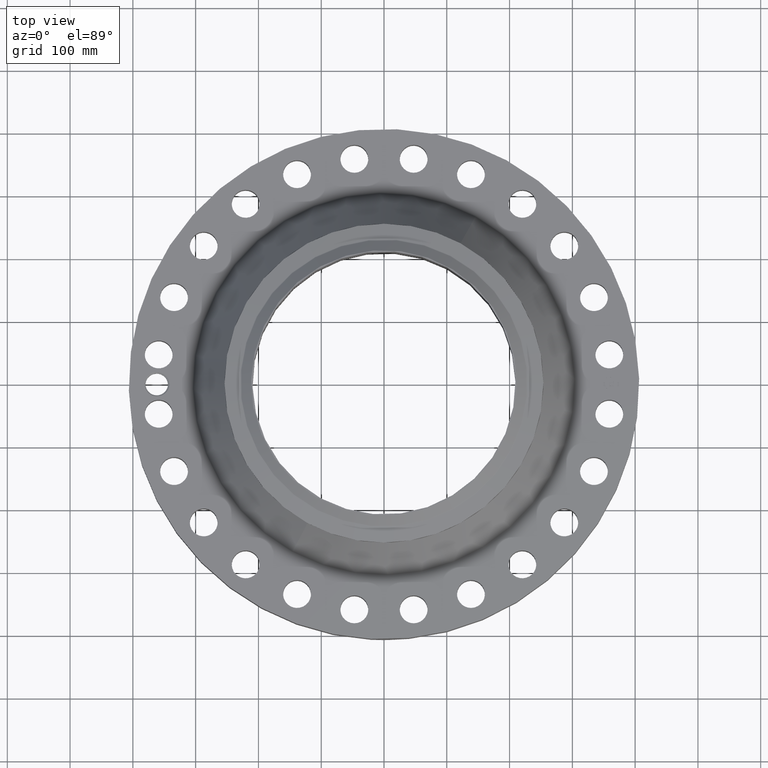
[diagram: clean part render]
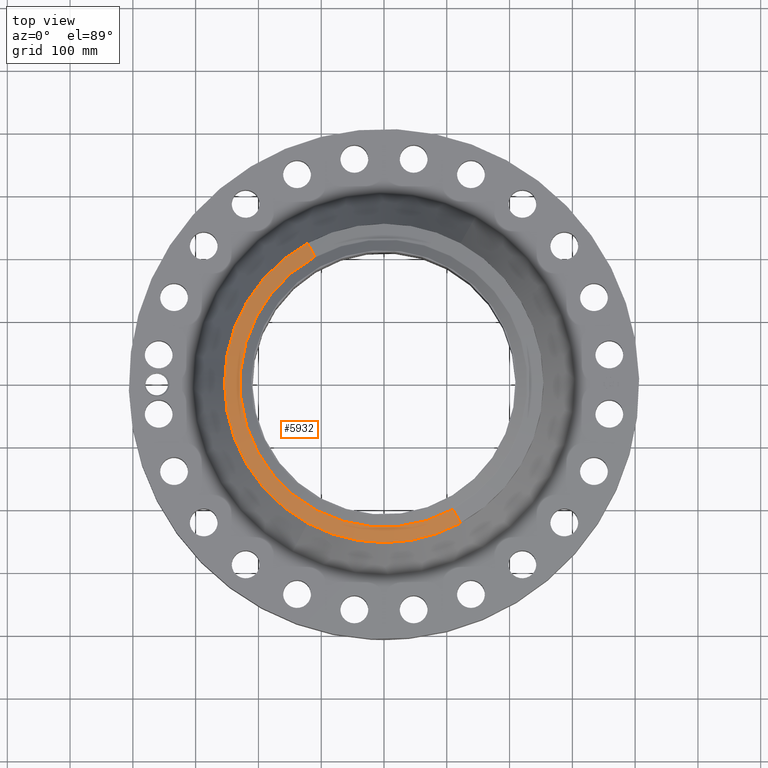
[diagram: same view with one face highlighted and labeled with its STEP entity id]
A machine part, top view. The second image highlights one B-rep face of the part: STEP entity #5932.
In plain terms, the highlighted conical surface has half-angle 80 deg.
Its self-contained STEP definition (entity closure, byte-faithful):
#4451=AXIS2_PLACEMENT_3D('Circle Axis2P3D',#4449,#4450,$) ;
#4464=AXIS2_PLACEMENT_3D('Circle Axis2P3D',#4462,#4463,$) ;
#5264=AXIS2_PLACEMENT_3D('Circle Axis2P3D',#5262,#5263,$) ;
#5905=AXIS2_PLACEMENT_3D('Cone Axis2P3D',#5902,#5903,#5904) ;
#4432=CARTESIAN_POINT('Vertex',(-4.79425538606,-8.77582561894,7.05976061205)) ;
#4446=CARTESIAN_POINT('Vertex',(4.79425538606,-8.77582561894,7.05976061205)) ;
#4449=CARTESIAN_POINT('Axis2P3D Location',(0.,0.,7.05976061205)) ;
#4462=CARTESIAN_POINT('Axis2P3D Location',(0.,0.,7.05976061205)) ;
#4466=CARTESIAN_POINT('Vertex',(-4.79425538606,8.77582561894,7.05976061205)) ;
#5259=CARTESIAN_POINT('Vertex',(-4.32753165655,7.92149356263,7.23141601925)) ;
#5262=CARTESIAN_POINT('Axis2P3D Location',(0.,0.,7.23141601925)) ;
#5266=CARTESIAN_POINT('Vertex',(4.32753165655,-7.92149356263,7.23141601925)) ;
#5902=CARTESIAN_POINT('Axis2P3D Location',(0.,0.,7.23141601925)) ;
#5907=CARTESIAN_POINT('Line Origine',(-4.5608935213,8.34865959079,7.14558831565)) ;
#5912=CARTESIAN_POINT('Line Origine',(4.5608935213,-8.34865959079,7.14558831565)) ;
#4450=DIRECTION('Axis2P3D Direction',(0.,0.,-0.0393700787402)) ;
#4463=DIRECTION('Axis2P3D Direction',(0.,0.,-0.0393700787402)) ;
#5263=DIRECTION('Axis2P3D Direction',(0.,0.,0.0393700787402)) ;
#5903=DIRECTION('Axis2P3D Direction',(-0.,-0.,-0.0393700787402)) ;
#5904=DIRECTION('Axis2P3D XDirection',(0.0188750212049,-0.0345504945626,0.)) ;
#5908=DIRECTION('Vector Direction',(-0.0185882672208,0.0340255949157,-0.00683654242783)) ;
#5913=DIRECTION('Vector Direction',(0.0185882672208,-0.0340255949157,-0.00683654242783)) ;
#5909=VECTOR('Line Direction',#5908,0.0393700787402) ;
#5914=VECTOR('Line Direction',#5913,0.0393700787402) ;
#5926=ORIENTED_EDGE('',*,*,#5916,.F.) ;
#5927=ORIENTED_EDGE('',*,*,#5268,.F.) ;
#5928=ORIENTED_EDGE('',*,*,#5911,.T.) ;
#5929=ORIENTED_EDGE('',*,*,#4468,.T.) ;
#5930=ORIENTED_EDGE('',*,*,#4453,.F.) ;
#5932=ADVANCED_FACE('PartBody',(#5931),#5906,.T.) ;
#4452=CIRCLE('generated circle',#4451,10.) ;
#4465=CIRCLE('generated circle',#4464,10.) ;
#5265=CIRCLE('generated circle',#5264,9.02649380996) ;
#5906=CONICAL_SURFACE('Cone',#5905,9.02649380996,1.3962634016) ;
#4453=EDGE_CURVE('',#4447,#4433,#4452,.T.) ;
#4468=EDGE_CURVE('',#4467,#4433,#4465,.F.) ;
#5268=EDGE_CURVE('',#5260,#5267,#5265,.T.) ;
#5911=EDGE_CURVE('',#5260,#4467,#5910,.T.) ;
#5916=EDGE_CURVE('',#5267,#4447,#5915,.T.) ;
#5925=EDGE_LOOP('',(#5926,#5927,#5928,#5929,#5930)) ;
#5931=FACE_OUTER_BOUND('',#5925,.T.) ;
#5910=LINE('Line',#5907,#5909) ;
#5915=LINE('Line',#5912,#5914) ;
#4433=VERTEX_POINT('',#4432) ;
#4447=VERTEX_POINT('',#4446) ;
#4467=VERTEX_POINT('',#4466) ;
#5260=VERTEX_POINT('',#5259) ;
#5267=VERTEX_POINT('',#5266) ;